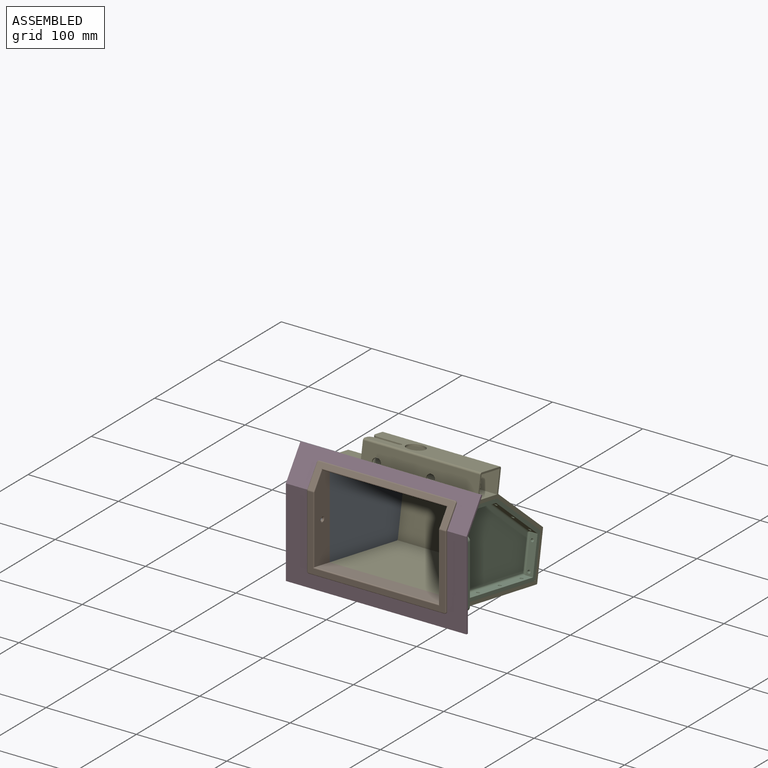
[diagram: assembled view]
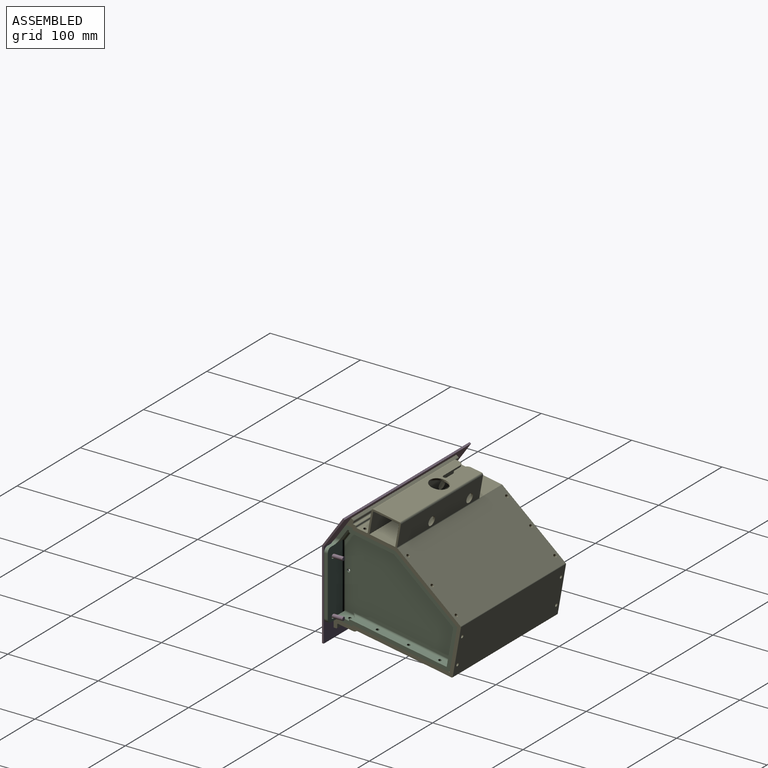
[diagram: assembled view, second angle]
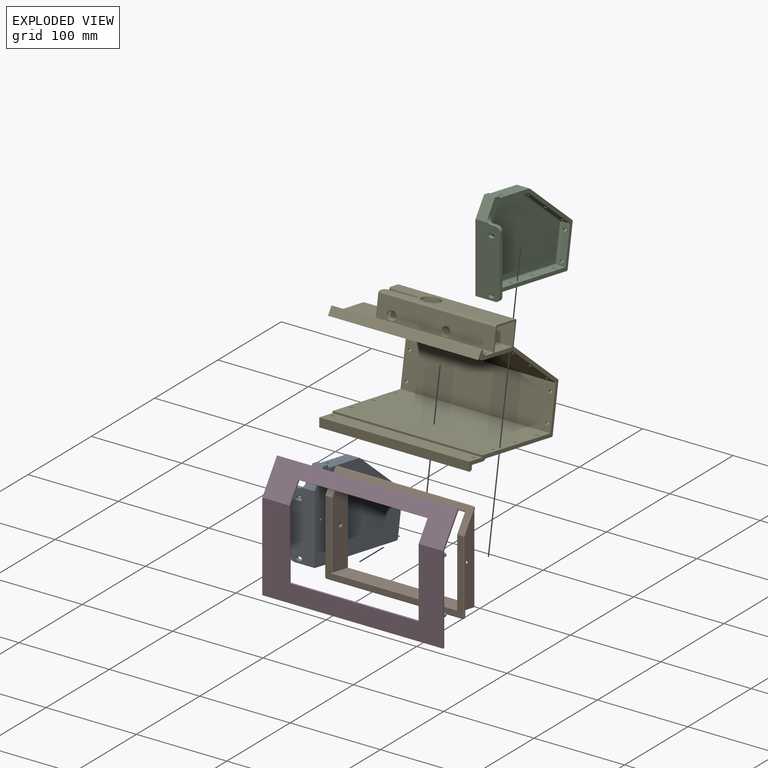
[diagram: exploded view]
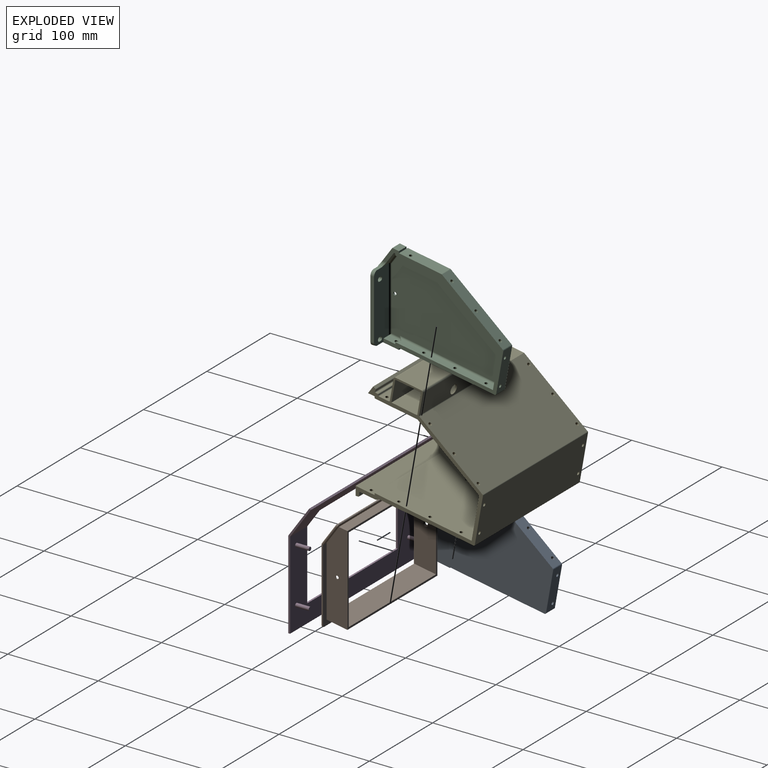
[diagram: exploded view, second angle]
ASSEMBLY  parts=5 mates=4
PART A: 62 faces, bbox 30.5x138.1x118.2 mm
  f0: plane 136.58x116.71mm, normal (-1,0,0), area 1328.3mm2, adj f1,f2,f3,f4,f8,f9,f10,f11
  f1: plane 105.9x18.67mm, normal (0,-0.17,-0.98), area 1476.5mm2, adj f0,f5,f6,f8,f36,f37,f38,f48
  f2: plane 44.95x14mm, normal (0,0.98,-0.17), area 619.7mm2, adj f0,f6,f42,f43,f48,f49
  f3: plane 67.33x57.19mm, normal (0,0.65,0.76), area 1207.9mm2, adj f0,f6,f44,f45,f46,f49,f50
  f4: plane 47.01x14mm, normal (0,0.17,0.98), area 658.7mm2, adj f0,f5,f6,f9,f40,f50
  f5: plane 94.71x2mm, normal (0,-1,0), area 189.4mm2, adj f1,f4,f6,f7
  f6: plane 115.58x113.4mm, normal (1,0,0), area 9184.9mm2, adj f1,f2,f3,f4,f5,f48,f49,f50
  f7: plane 100.05x21mm, normal (1,0,0), area 1913.3mm2, adj f5,f8,f9,f10,f11,f12,f13,f47
  f8: plane 12x2.03mm, normal (0,1,0), area 24.4mm2, adj f0,f1,f7,f13
  f9: plane 12x2.03mm, normal (0,1,0), area 24.4mm2, adj f0,f4,f7,f10
  f10: plane 12x7.27mm, normal (0,0.17,0.98), area 88.6mm2, adj f0,f7,f9,f11
  f11: plane 19.87x13.99mm, normal (0,-0.82,0.57), area 289.7mm2, adj f0,f7,f10,f12,f53
  f12: plane 76.74x27mm, normal (0,-1,0), area 1995.9mm2, adj f7,f11,f13,f25,f26,f27,f28,f29
  f13: plane 21x12mm, normal (0,-0.17,-0.98), area 246.3mm2, adj f0,f7,f8,f12,f39
  f14: plane 75.48x23mm, normal (0,1,0), area 1648.5mm2, adj f0,f15,f23,f25,f26,f27,f28,f29
  f15: plane 17.96x14.47mm, normal (0,0.82,-0.57), area 167.6mm2, adj f0,f14,f16,f53,f57
  f16: plane 10.17x1.73mm, normal (0,-0.17,-0.98), area 13.8mm2, adj f0,f15,f17,f57
  f17: plane 10.15x4.21mm, normal (0,-1,0), area 21.1mm2, adj f0,f16,f18,f24,f54,f57
  f18: plane 49.65x8.75mm, normal (0,-0.17,-0.98), area 393.7mm2, adj f0,f17,f19,f40,f54
  f19: plane 65.72x55.82mm, normal (0,-0.65,-0.76), area 661mm2, adj f0,f18,f20,f44,f45,f46,f55
  f20: plane 41.07x8mm, normal (0,-0.98,0.17), area 314.4mm2, adj f0,f19,f21,f42,f43,f56
  f21: plane 108.13x19.07mm, normal (0,0.17,0.98), area 839.1mm2, adj f0,f20,f22,f36,f37,f38,f41,f58
  f22: plane 2.06x1.72mm, normal (0,-1,0), area 3.2mm2, adj f0,f21,f23,f41
  f23: plane 14.73x8mm, normal (0,0.17,0.98), area 104.1mm2, adj f0,f14,f22,f39,f41,f61
  f24: plane 124.2x104.21mm, normal (-1,0,0), area 8664.9mm2, adj f17,f47,f54,f55,f56,f57,f58,f59
  f25: plane 5x4mm, normal (0,0,1), area 20mm2, adj f12,f14,f52,f53
  f26: plane 10x4mm, normal (0,0,-1), area 40mm2, adj f0,f12,f14,f51
  f27: plane 65.48x4mm, normal (-1,0,0), area 261.9mm2, adj f12,f14,f51,f52
  f28: cylinder r=2.25mm len=4.5mm, axis (0,1,0), area 28.3mm2, adj f12,f14,f29,f31
  f29: plane 4x2mm, normal (0,0,1), area 8mm2, adj f12,f14,f28,f30
  f30: cylinder r=2.25mm len=4.5mm, axis (0,1,0), area 28.3mm2, adj f12,f14,f29,f31
  f31: plane 4x2mm, normal (0,0,-1), area 8mm2, adj f12,f14,f28,f30
  f32: cylinder r=2.25mm len=4.5mm, axis (0,1,0), area 28.3mm2, adj f12,f14,f33,f35
  f33: plane 4x2mm, normal (0,0,1), area 8mm2, adj f12,f14,f32,f34
  f34: cylinder r=2.25mm len=4.5mm, axis (0,1,0), area 28.3mm2, adj f12,f14,f33,f35
  f35: plane 4x2mm, normal (0,0,-1), area 8mm2, adj f12,f14,f32,f34
  f36: cylinder r=1.75mm len=4.55mm, axis (0,-0.17,-0.98), area 44mm2, adj f1,f21
  f37: cylinder r=1.75mm len=4.55mm, axis (0,-0.17,-0.98), area 44mm2, adj f1,f21
  f38: cylinder r=1.75mm len=4.55mm, axis (0,-0.17,-0.98), area 44mm2, adj f1,f21
  f39: cylinder r=1.75mm len=4.55mm, axis (0,-0.17,-0.98), area 44mm2, adj f13,f23
  f40: cylinder r=1.75mm len=4.55mm, axis (0,-0.17,-0.98), area 44mm2, adj f4,f18
  f41: cylinder r=4mm len=7.06mm, axis (0,0.17,0.98), area 16.5mm2, adj f21,f22,f23,f58,f60,f61
  f42: cylinder r=1.75mm len=4.55mm, axis (0,0.98,-0.17), area 44mm2, adj f2,f20
  f43: cylinder r=1.75mm len=4.55mm, axis (0,0.98,-0.17), area 44mm2, adj f2,f20
  f44: cylinder r=1.75mm len=5.31mm, axis (0,0.65,0.76), area 44mm2, adj f3,f19
  f45: cylinder r=1.75mm len=5.31mm, axis (0,0.65,0.76), area 44mm2, adj f3,f19
  f46: cylinder r=1.75mm len=5.31mm, axis (0,0.65,0.76), area 44mm2, adj f3,f19
  f47: cylinder r=1.75mm len=3.5mm, axis (1,0,0), area 22mm2, adj f7,f24
  f48: cylinder r=1.5mm len=14mm, axis (-1,0,0), area 33mm2, adj f0,f1,f2,f6
  f49: cylinder r=1.5mm len=14mm, axis (-1,0,0), area 21.9mm2, adj f0,f2,f3,f6
  f50: cylinder r=1.5mm len=14mm, axis (-1,0,0), area 11.1mm2, adj f0,f3,f4,f6
  f51: cylinder r=5mm len=5mm, axis (0,-1,0), area 31.4mm2, adj f12,f14,f26,f27
  f52: cylinder r=5mm len=5mm, axis (0,1,0), area 31.4mm2, adj f12,f14,f25,f27
  f53: cylinder r=5mm len=7.5mm, axis (0,-1,0), area 39.6mm2, adj f0,f11,f12,f15,f25
  f54: cylinder r=2mm len=50mm, axis (0,0.98,-0.17), area 157mm2, adj f17,f18,f24,f55
  f55: cylinder r=2mm len=67.02mm, axis (0,0.76,-0.65), area 268.2mm2, adj f19,f24,f54,f56
  f56: cylinder r=2mm len=41.42mm, axis (0,-0.17,-0.98), area 126.1mm2, adj f20,f24,f55,f58
  f57: cylinder r=2mm len=18.15mm, axis (0,0.57,0.82), area 63.1mm2, adj f15,f16,f17,f24,f59
  f58: cylinder r=2mm len=110.69mm, axis (0,-0.98,0.17), area 344.5mm2, adj f21,f24,f41,f56,f60
  f59: cylinder r=2mm len=72.12mm, axis (0,0,1), area 222.9mm2, adj f14,f24,f57,f61
  f60: bspline ~4.37x1.97mm, area 5.5mm2, adj f24,f41,f58,f61
  f61: cylinder r=2mm len=13.75mm, axis (0,-0.98,0.17), area 37mm2, adj f23,f24,f41,f59,f60
PART B: 48 faces, bbox 154.3x25.2x107 mm
  f0: plane 154x82.63mm, normal (0,1,0), area 1787.4mm2, adj f1,f3,f6,f7,f12,f15,f16,f19
  f1: plane 154x22.99mm, normal (0,0.82,-0.57), area 965.2mm2, adj f0,f3,f6,f14,f15,f16,f17,f18
  f2: plane 152x81.63mm, normal (0,-1,0), area 1792.3mm2, adj f21,f22,f23,f24,f26,f28,f30,f38
  f3: plane 102.91x16.2mm, normal (1,0,0), area 107.4mm2, adj f0,f1,f17,f19,f30,f32,f34
  f4: plane 96.87x24mm, normal (-1,0,0), area 2129.7mm2, adj f10,f11,f13,f35,f36,f37,f38,f40
  f5: plane 96.87x24mm, normal (1,0,0), area 2129.7mm2, adj f10,f11,f13,f37,f39,f40,f41,f42
  f6: plane 102.91x16.2mm, normal (-1,0,0), area 107.4mm2, adj f0,f1,f18,f20,f23,f25,f27
  f7: plane 150x1mm, normal (0,0,-1), area 150mm2, adj f0,f19,f20,f26
  f8: plane 152x22.53mm, normal (0,-0.82,0.57), area 1089.8mm2, adj f21,f22,f27,f29,f31,f33,f34,f35
  f9: plane 150x0.57mm, normal (0,0.57,0.82), area 104.8mm2, adj f17,f18,f31,f47
  f10: plane 138x23.83mm, normal (0,0.17,0.98), area 3338.8mm2, adj f4,f5,f13,f40
  f11: plane 138x11.33mm, normal (0,-0.17,-0.98), area 1588.2mm2, adj f4,f5,f13,f37
  f12: plane 142x23mm, normal (0,-0.17,-0.98), area 3316.4mm2, adj f0,f13,f15,f16
  f13: plane 142x98.77mm, normal (0,1,0), area 955.6mm2, adj f4,f5,f10,f11,f12,f14,f15,f16
  f14: plane 142x9.44mm, normal (0,0.17,0.98), area 1361.3mm2, adj f1,f13,f15,f16
  f15: plane 100.43x23mm, normal (-1,0,0), area 2114.6mm2, adj f0,f1,f12,f13,f14,f44
  f16: plane 100.43x23mm, normal (1,0,0), area 2114.6mm2, adj f0,f1,f12,f13,f14,f43
  f17: cylinder r=2mm len=2.21mm, axis (0,0.82,-0.57), area 2.9mm2, adj f1,f3,f9,f33,f47
  f18: cylinder r=2mm len=2.21mm, axis (0,-0.82,0.57), area 2.9mm2, adj f1,f6,f9,f29,f47
  f19: cylinder r=2mm len=2mm, axis (0,1,0), area 3.1mm2, adj f0,f3,f7,f28
  f20: cylinder r=2mm len=2mm, axis (0,1,0), area 3.1mm2, adj f0,f6,f7,f24
  f21: cylinder r=2mm len=6mm, axis (1,0,0), area 7.3mm2, adj f2,f8,f25,f41
  f22: cylinder r=2mm len=6mm, axis (1,0,0), area 7.3mm2, adj f2,f8,f32,f36
  f23: cylinder r=1mm len=80.63mm, axis (0,0,1), area 126.7mm2, adj f2,f6,f24,f25
  f24: torus R=1mm, axis (0,-1,0), area 4mm2, adj f2,f20,f23,f26
  f25: torus R=1mm, axis (1,0,0), area 1.6mm2, adj f6,f21,f23,f27
  f26: cylinder r=1mm len=150mm, axis (-1,0,0), area 235.6mm2, adj f2,f7,f24,f28
  f27: cylinder r=1mm len=22.28mm, axis (0,-0.57,-0.82), area 41.6mm2, adj f6,f8,f25,f29
  f28: torus R=1mm, axis (0,-1,0), area 4mm2, adj f2,f19,f26,f30
  f29: torus R=1mm, axis (0,0.82,-0.57), area 4mm2, adj f8,f18,f27,f31
  f30: cylinder r=1mm len=80.63mm, axis (0,0,-1), area 126.7mm2, adj f2,f3,f28,f32
  f31: cylinder r=1mm len=150mm, axis (-1,0,0), area 235.6mm2, adj f8,f9,f29,f33
  f32: torus R=1mm, axis (-1,0,0), area 1.6mm2, adj f3,f22,f30,f34
  f33: torus R=1mm, axis (0,0.82,-0.57), area 4mm2, adj f8,f17,f31,f34
  f34: cylinder r=1mm len=22.28mm, axis (0,0.57,0.82), area 41.6mm2, adj f3,f8,f32,f33
  f35: cylinder r=1mm len=18.65mm, axis (0,0.57,0.82), area 33.7mm2, adj f4,f8,f36,f37
  f36: torus R=1mm, axis (1,0,0), area 1.6mm2, adj f4,f22,f35,f38
  f37: cylinder r=1mm len=140mm, axis (1,0,0), area 278.1mm2, adj f4,f5,f8,f11,f35,f39
  f38: cylinder r=1mm len=75.82mm, axis (0,0,1), area 118.1mm2, adj f2,f4,f36,f40
  f39: cylinder r=1mm len=18.65mm, axis (0,0.57,0.82), area 33.7mm2, adj f5,f8,f37,f41
  f40: cylinder r=1mm len=140mm, axis (1,0,0), area 242mm2, adj f2,f4,f5,f10,f38,f42
  f41: torus R=1mm, axis (-1,0,0), area 1.6mm2, adj f5,f21,f39,f42
  f42: cylinder r=1mm len=75.82mm, axis (0,0,-1), area 118.1mm2, adj f2,f5,f40,f41
  f43: cylinder r=1.75mm len=3.5mm, axis (-1,0,0), area 11mm2, adj f16,f46
  f44: cylinder r=1.75mm len=3.5mm, axis (-1,0,0), area 11mm2, adj f15,f45
  f45: cone r=2.75mm half-angle=45deg, axis (1,0,0), area 20mm2, adj f5,f44
  f46: cone r=2.75mm half-angle=45deg, axis (-1,0,0), area 20mm2, adj f4,f43
  f47: plane 152.48x0.53mm, normal (0,1,0), area 79.7mm2, adj f1,f9,f17,f18
PART C: 63 faces, bbox 30.5x138.1x118.2 mm
  f0: plane 136.58x116.71mm, normal (1,0,0), area 1328.3mm2, adj f1,f2,f3,f4,f8,f9,f10,f11
  f1: plane 105.9x18.67mm, normal (0,-0.17,-0.98), area 1476.5mm2, adj f0,f5,f6,f8,f36,f37,f38,f48
  f2: plane 44.95x14mm, normal (0,0.98,-0.17), area 619.7mm2, adj f0,f6,f42,f43,f48,f49
  f3: plane 67.33x57.19mm, normal (0,0.65,0.76), area 1207.9mm2, adj f0,f6,f44,f45,f46,f49,f50
  f4: plane 47.01x14mm, normal (0,0.17,0.98), area 658.7mm2, adj f0,f5,f6,f9,f40,f50
  f5: plane 94.71x2mm, normal (0,-1,0), area 189.4mm2, adj f1,f4,f6,f7
  f6: plane 115.58x113.4mm, normal (-1,0,0), area 9184.9mm2, adj f1,f2,f3,f4,f5,f48,f49,f50
  f7: plane 100.05x21mm, normal (-1,0,0), area 1913.3mm2, adj f5,f8,f9,f10,f11,f12,f13,f47
  f8: plane 12x2.03mm, normal (0,1,0), area 24.4mm2, adj f0,f1,f7,f13
  f9: plane 12x2.03mm, normal (0,1,0), area 24.4mm2, adj f0,f4,f7,f10
  f10: plane 12x7.27mm, normal (0,0.17,0.98), area 88.6mm2, adj f0,f7,f9,f11
  f11: plane 19.87x13.99mm, normal (0,-0.82,0.57), area 289.7mm2, adj f0,f7,f10,f12,f53
  f12: plane 76.74x27mm, normal (0,-1,0), area 1995.9mm2, adj f7,f11,f13,f25,f26,f27,f28,f29
  f13: plane 21x12mm, normal (0,-0.17,-0.98), area 246.3mm2, adj f0,f7,f8,f12,f39
  f14: plane 75.48x23mm, normal (0,1,0), area 1648.5mm2, adj f0,f15,f23,f25,f26,f27,f28,f29
  f15: plane 17.96x14.47mm, normal (0,0.82,-0.57), area 167.6mm2, adj f0,f14,f16,f53,f56
  f16: plane 9.58x1.51mm, normal (0,-0.17,-0.98), area 13.4mm2, adj f0,f15,f17,f54,f56
  f17: plane 8x2.03mm, normal (0,-1,0), area 16.2mm2, adj f0,f16,f18,f54
  f18: plane 49.65x8.75mm, normal (0,-0.17,-0.98), area 393.7mm2, adj f0,f17,f19,f40,f55
  f19: plane 65.72x55.82mm, normal (0,-0.65,-0.76), area 661mm2, adj f0,f18,f20,f44,f45,f46,f57
  f20: plane 41.07x8mm, normal (0,-0.98,0.17), area 314.4mm2, adj f0,f19,f21,f42,f43,f59
  f21: plane 108.13x19.07mm, normal (0,0.17,0.98), area 839.1mm2, adj f0,f20,f22,f36,f37,f38,f41,f61
  f22: plane 2.06x1.72mm, normal (0,-1,0), area 3.2mm2, adj f0,f21,f23,f41
  f23: plane 14.73x8mm, normal (0,0.17,0.98), area 104.1mm2, adj f0,f14,f22,f39,f41,f60
  f24: plane 124.2x101.62mm, normal (1,0,0), area 8662.2mm2, adj f47,f55,f56,f57,f58,f59,f60,f61
  f25: plane 5x4mm, normal (0,0,1), area 20mm2, adj f12,f14,f52,f53
  f26: plane 10x4mm, normal (0,0,-1), area 40mm2, adj f0,f12,f14,f51
  f27: plane 65.48x4mm, normal (1,0,0), area 261.9mm2, adj f12,f14,f51,f52
  f28: cylinder r=2.25mm len=4.5mm, axis (0,1,0), area 28.3mm2, adj f12,f14,f29,f31
  f29: plane 4x2mm, normal (0,0,1), area 8mm2, adj f12,f14,f28,f30
  f30: cylinder r=2.25mm len=4.5mm, axis (0,1,0), area 28.3mm2, adj f12,f14,f29,f31
  f31: plane 4x2mm, normal (0,0,-1), area 8mm2, adj f12,f14,f28,f30
  f32: cylinder r=2.25mm len=4.5mm, axis (0,1,0), area 28.3mm2, adj f12,f14,f33,f35
  f33: plane 4x2mm, normal (0,0,1), area 8mm2, adj f12,f14,f32,f34
  f34: cylinder r=2.25mm len=4.5mm, axis (0,1,0), area 28.3mm2, adj f12,f14,f33,f35
  f35: plane 4x2mm, normal (0,0,-1), area 8mm2, adj f12,f14,f32,f34
  f36: cylinder r=1.75mm len=4.55mm, axis (0,-0.17,-0.98), area 44mm2, adj f1,f21
  f37: cylinder r=1.75mm len=4.55mm, axis (0,-0.17,-0.98), area 44mm2, adj f1,f21
  f38: cylinder r=1.75mm len=4.55mm, axis (0,-0.17,-0.98), area 44mm2, adj f1,f21
  f39: cylinder r=1.75mm len=4.55mm, axis (0,-0.17,-0.98), area 44mm2, adj f13,f23
  f40: cylinder r=1.75mm len=4.55mm, axis (0,-0.17,-0.98), area 44mm2, adj f4,f18
  f41: cylinder r=4mm len=7.06mm, axis (0,0.17,0.98), area 16.5mm2, adj f21,f22,f23,f60,f61,f62
  f42: cylinder r=1.75mm len=4.55mm, axis (0,0.98,-0.17), area 44mm2, adj f2,f20
  f43: cylinder r=1.75mm len=4.55mm, axis (0,0.98,-0.17), area 44mm2, adj f2,f20
  f44: cylinder r=1.75mm len=5.31mm, axis (0,0.65,0.76), area 44mm2, adj f3,f19
  f45: cylinder r=1.75mm len=5.31mm, axis (0,0.65,0.76), area 44mm2, adj f3,f19
  f46: cylinder r=1.75mm len=5.31mm, axis (0,0.65,0.76), area 44mm2, adj f3,f19
  f47: cylinder r=1.75mm len=3.5mm, axis (-1,0,0), area 22mm2, adj f7,f24
  f48: cylinder r=1.5mm len=14mm, axis (1,0,0), area 33mm2, adj f0,f1,f2,f6
  f49: cylinder r=1.5mm len=14mm, axis (1,0,0), area 21.9mm2, adj f0,f2,f3,f6
  f50: cylinder r=1.5mm len=14mm, axis (1,0,0), area 11.1mm2, adj f0,f3,f4,f6
  f51: cylinder r=5mm len=5mm, axis (0,-1,0), area 31.4mm2, adj f12,f14,f26,f27
  f52: cylinder r=5mm len=5mm, axis (0,1,0), area 31.4mm2, adj f12,f14,f25,f27
  f53: cylinder r=5mm len=7.5mm, axis (0,-1,0), area 39.6mm2, adj f0,f11,f12,f15,f25
  f54: cylinder r=2mm len=3.72mm, axis (0,0,-1), area 6.3mm2, adj f16,f17,f55,f56
  f55: cylinder r=2mm len=51.54mm, axis (0,0.98,-0.17), area 159.7mm2, adj f18,f24,f54,f56,f57
  f56: cylinder r=2mm len=17.9mm, axis (0,0.57,0.82), area 60.4mm2, adj f15,f16,f24,f54,f55,f58
  f57: cylinder r=2mm len=67.02mm, axis (0,0.76,-0.65), area 268.2mm2, adj f19,f24,f55,f59
  f58: cylinder r=2mm len=72.12mm, axis (0,0,1), area 222.9mm2, adj f14,f24,f56,f60
  f59: cylinder r=2mm len=41.42mm, axis (0,-0.17,-0.98), area 126.1mm2, adj f20,f24,f57,f61
  f60: cylinder r=2mm len=13.75mm, axis (0,-0.98,0.17), area 37mm2, adj f23,f24,f41,f58,f62
  f61: cylinder r=2mm len=110.69mm, axis (0,-0.98,0.17), area 344.5mm2, adj f21,f24,f41,f59,f62
  f62: bspline ~4.37x1.97mm, area 5.5mm2, adj f24,f41,f60,f61
PART D: 20 faces, bbox 200x24.9x130.9 mm
  f0: plane 200x33.28mm, normal (0,-0.82,0.57), area 4551.1mm2, adj f2,f4,f6,f7,f9,f10,f11
  f1: plane 200x32.77mm, normal (0,0.82,-0.57), area 4515.2mm2, adj f3,f4,f6,f7,f9,f10,f11
  f2: plane 200x97.63mm, normal (0,-1,0), area 8424.9mm2, adj f0,f4,f5,f6,f8,f9,f10
  f3: plane 200x97mm, normal (0,1,0), area 8338.7mm2, adj f1,f4,f5,f6,f8,f9,f10,f12
  f4: plane 130.91x24.94mm, normal (-1,0,0), area 275.3mm2, adj f0,f1,f2,f3,f5,f7
  f5: plane 200x2mm, normal (0,0,-1), area 400mm2, adj f2,f3,f4,f6
  f6: plane 130.91x24.94mm, normal (1,0,0), area 275.3mm2, adj f0,f1,f2,f3,f5,f7
  f7: plane 200x1.64mm, normal (0,0.57,0.82), area 400mm2, adj f0,f1,f4,f6
  f8: plane 143x2mm, normal (0,0,1), area 286mm2, adj f2,f3,f9,f10
  f9: plane 98.11x15.98mm, normal (1,0,0), area 204mm2, adj f0,f1,f2,f3,f8,f11
  f10: plane 98.11x15.98mm, normal (-1,0,0), area 204mm2, adj f0,f1,f2,f3,f8,f11
  f11: plane 143x1.64mm, normal (0,-0.57,-0.82), area 286mm2, adj f0,f1,f9,f10
  f12: cylinder r=2mm len=15mm, axis (0,-1,0), area 188.5mm2, adj f3,f13
  f13: plane 4x4mm, normal (0,1,0), area 12.6mm2, adj f12
  f14: cylinder r=2mm len=15mm, axis (0,-1,0), area 188.5mm2, adj f3,f15
  f15: plane 4x4mm, normal (0,1,0), area 12.6mm2, adj f14
  f16: cylinder r=2mm len=15mm, axis (0,-1,0), area 188.5mm2, adj f3,f17
  f17: plane 4x4mm, normal (0,1,0), area 12.6mm2, adj f16
  f18: cylinder r=2mm len=15mm, axis (0,-1,0), area 188.5mm2, adj f3,f19
  f19: plane 4x4mm, normal (0,1,0), area 12.6mm2, adj f18
PART E: 77 faces, bbox 166x141x145 mm
  f0: plane 166x47.27mm, normal (0,-0.98,0.17), area 7929.5mm2, adj f1,f19,f23,f24,f60,f61,f62,f63
  f1: plane 166x68.3mm, normal (0,-0.65,-0.76), area 14817.1mm2, adj f0,f20,f23,f24,f54,f55,f56,f57
  f2: plane 26.13x11mm, normal (-1,0,0), area 59.4mm2, adj f3,f4,f25,f28,f29,f37,f39,f65
  f3: plane 130x28.56mm, normal (0,0.17,0.98), area 3310.8mm2, adj f2,f24,f30,f31,f33,f34,f35,f36
  f4: plane 166x44.35mm, normal (0,0.17,0.98), area 6491.9mm2, adj f2,f10,f23,f24,f26,f29,f30,f32
  f5: plane 166x8.19mm, normal (0,-0.82,0.57), area 1660mm2, adj f6,f22,f23,f24
  f6: plane 166x2.46mm, normal (0,0.57,0.82), area 498mm2, adj f5,f23,f24,f66
  f7: plane 166x0.94mm, normal (0,0.82,-0.57), area 191.2mm2, adj f23,f24,f66,f67
  f8: plane 166x2.02mm, normal (0,0.17,0.98), area 340.1mm2, adj f23,f24,f67,f68
  f9: plane 166x0.35mm, normal (0,1,0), area 58.5mm2, adj f23,f24,f68,f69
  f10: plane 166x70.43mm, normal (0,0.65,0.76), area 15208.2mm2, adj f4,f23,f24,f30,f54,f55,f56,f57
  f11: plane 166x51.92mm, normal (0,0.98,-0.17), area 8713mm2, adj f23,f24,f60,f61,f62,f63,f71,f72
  f12: plane 166x104.46mm, normal (0,-0.17,-0.98), area 17549.9mm2, adj f23,f24,f48,f49,f50,f51,f52,f53
  f13: plane 166x16.25mm, normal (0,-0.17,-0.98), area 2719.6mm2, adj f23,f24,f46,f47,f74,f76
  f14: plane 166x3.04mm, normal (0,1,0), area 504.8mm2, adj f23,f24,f74,f75
  f15: plane 166x3mm, normal (0,0,-1), area 498mm2, adj f16,f23,f24,f75
  f16: plane 166x10mm, normal (0,-1,0), area 1660mm2, adj f15,f17,f23,f24
  f17: plane 166x21mm, normal (0,0.17,0.98), area 3520.5mm2, adj f16,f18,f23,f24,f46,f47
  f18: plane 166x2.03mm, normal (0,-1,0), area 337.1mm2, adj f17,f19,f23,f24
  f19: plane 166x107.37mm, normal (0,0.17,0.98), area 18041mm2, adj f0,f18,f23,f24,f48,f49,f50,f51
  f20: plane 166x47.41mm, normal (0,-0.17,-0.98), area 7520mm2, adj f1,f21,f23,f24,f44,f45,f64
  f21: plane 166x2.03mm, normal (0,-1,0), area 337.1mm2, adj f20,f22,f23,f24
  f22: plane 166x7.27mm, normal (0,-0.17,-0.98), area 1225.1mm2, adj f5,f21,f23,f24
  f23: plane 140.96x129.62mm, normal (-1,0,0), area 1374.4mm2, adj f0,f1,f4,f5,f6,f7,f8,f9
  f24: plane 145.02x140.96mm, normal (1,0,0), area 1537mm2, adj f0,f1,f3,f4,f5,f6,f7,f8
  f25: plane 130x28.56mm, normal (0,-0.17,-0.98), area 3310.8mm2, adj f2,f24,f26,f29,f30,f31,f33,f34
  f26: plane 130x24.13mm, normal (0,-0.98,0.17), area 3027.9mm2, adj f4,f24,f25,f30,f42,f43
  f27: plane 130x23.56mm, normal (0,0.98,-0.17), area 2953.4mm2, adj f24,f30,f38,f42,f43,f70
  f28: plane 130x23.14mm, normal (0,-0.98,0.17), area 2897.9mm2, adj f2,f24,f39,f40,f41,f65
  f29: plane 130x24.13mm, normal (0,0.98,-0.17), area 3027.9mm2, adj f2,f4,f24,f25,f40,f41
  f30: plane 28.81x13.33mm, normal (-1,0,0), area 75.2mm2, adj f3,f4,f10,f25,f26,f27,f36,f38
  f31: cylinder r=10mm len=20.04mm, axis (0,0.17,0.98), area 125.7mm2, adj f3,f25
  f32: cylinder r=10mm len=20.04mm, axis (0,0.17,0.98), area 125.7mm2, adj f4,f64
  f33: plane 27x1.97mm, normal (0,-0.98,0.17), area 54mm2, adj f3,f25,f35,f36
  f34: plane 27x1.97mm, normal (0,0.98,-0.17), area 54mm2, adj f3,f25,f35,f37
  f35: cylinder r=2mm len=4.29mm, axis (0,0.17,0.98), area 12.6mm2, adj f3,f25,f33,f34
  f36: cylinder r=5mm len=5.27mm, axis (0,-0.17,-0.98), area 15.7mm2, adj f3,f25,f30,f33
  f37: cylinder r=5mm len=5.27mm, axis (0,0.17,0.98), area 15.7mm2, adj f2,f3,f25,f34
  f38: cylinder r=2mm len=130mm, axis (1,0,0), area 408.4mm2, adj f3,f24,f27,f30
  f39: cylinder r=2mm len=130mm, axis (1,0,0), area 408.4mm2, adj f2,f3,f24,f28
  f40: cylinder r=5mm len=10.2mm, axis (0,0.98,-0.17), area 62.8mm2, adj f28,f29
  f41: cylinder r=5mm len=10.2mm, axis (0,0.98,-0.17), area 62.8mm2, adj f28,f29
  f42: cylinder r=5mm len=10.2mm, axis (0,0.98,-0.17), area 62.8mm2, adj f26,f27
  f43: cylinder r=5mm len=10.2mm, axis (0,0.98,-0.17), area 62.8mm2, adj f26,f27
  f44: cylinder r=1.75mm len=4.55mm, axis (0,0.17,0.98), area 44mm2, adj f4,f20
  f45: cylinder r=1.75mm len=4.55mm, axis (0,0.17,0.98), area 44mm2, adj f4,f20
  f46: cylinder r=1.75mm len=4.55mm, axis (0,0.17,0.98), area 44mm2, adj f13,f17
  f47: cylinder r=1.75mm len=4.55mm, axis (0,0.17,0.98), area 44mm2, adj f13,f17
  f48: cylinder r=1.75mm len=4.55mm, axis (0,-0.17,-0.98), area 44mm2, adj f12,f19
  f49: cylinder r=1.75mm len=4.55mm, axis (0,-0.17,-0.98), area 44mm2, adj f12,f19
  f50: cylinder r=1.75mm len=4.55mm, axis (0,-0.17,-0.98), area 44mm2, adj f12,f19
  f51: cylinder r=1.75mm len=4.55mm, axis (0,-0.17,-0.98), area 44mm2, adj f12,f19
  f52: cylinder r=1.75mm len=4.55mm, axis (0,-0.17,-0.98), area 44mm2, adj f12,f19
  f53: cylinder r=1.75mm len=4.55mm, axis (0,-0.17,-0.98), area 44mm2, adj f12,f19
  f54: cylinder r=1.75mm len=5.31mm, axis (0,0.65,0.76), area 44mm2, adj f1,f10
  f55: cylinder r=1.75mm len=5.31mm, axis (0,0.65,0.76), area 44mm2, adj f1,f10
  f56: cylinder r=1.75mm len=5.31mm, axis (0,0.65,0.76), area 44mm2, adj f1,f10
  f57: cylinder r=1.75mm len=5.31mm, axis (0,0.65,0.76), area 44mm2, adj f1,f10
  f58: cylinder r=1.75mm len=5.31mm, axis (0,0.65,0.76), area 44mm2, adj f1,f10
  f59: cylinder r=1.75mm len=5.31mm, axis (0,0.65,0.76), area 44mm2, adj f1,f10
  f60: cylinder r=1.75mm len=4.55mm, axis (0,0.98,-0.17), area 44mm2, adj f0,f11
  f61: cylinder r=1.75mm len=4.55mm, axis (0,0.98,-0.17), area 44mm2, adj f0,f11
  f62: cylinder r=1.75mm len=4.55mm, axis (0,0.98,-0.17), area 44mm2, adj f0,f11
  f63: cylinder r=1.75mm len=4.55mm, axis (0,0.98,-0.17), area 44mm2, adj f0,f11
  f64: cone r=12mm half-angle=45deg, axis (0,-0.17,-0.98), area 195.5mm2, adj f20,f32
  f65: cylinder r=1mm len=130mm, axis (1,0,0), area 204.2mm2, adj f2,f4,f24,f28
  f66: cylinder r=1mm len=166mm, axis (-1,0,0), area 260.8mm2, adj f6,f7,f23,f24
  f67: cylinder r=1mm len=166mm, axis (-1,0,0), area 333.2mm2, adj f7,f8,f23,f24
  f68: cylinder r=1mm len=166mm, axis (-1,0,0), area 231.8mm2, adj f8,f9,f23,f24
  f69: cylinder r=1mm len=166mm, axis (-1,0,0), area 231.8mm2, adj f4,f9,f23,f24
  f70: cylinder r=1mm len=130mm, axis (-1,0,0), area 135.4mm2, adj f10,f24,f27,f30
  f71: cylinder r=1mm len=166mm, axis (1,0,0), area 172.8mm2, adj f10,f11,f23,f24
  f72: cylinder r=1mm len=166mm, axis (-1,0,0), area 260.8mm2, adj f11,f12,f23,f24
  f73: cylinder r=1mm len=166mm, axis (1,0,0), area 139.6mm2, adj f12,f23,f24,f76
  f74: cylinder r=1mm len=166mm, axis (1,0,0), area 289.7mm2, adj f13,f14,f23,f24
  f75: cylinder r=1mm len=166mm, axis (-1,0,0), area 260.8mm2, adj f14,f15,f23,f24
  f76: cylinder r=5mm len=166mm, axis (1,0,0), area 698.1mm2, adj f13,f23,f24,f73
PLACE A t=(-174.49,-66.95,22.3)mm
PLACE B t=(-36.49,-66.95,22.3)mm
PLACE C t=(-36.49,-66.95,22.3)mm
PLACE D t=(-36.49,-66.95,22.3)mm
PLACE E t=(-36.49,-66.95,22.3)mm
MATE fastened C.f39 <-> E.f45  axis (0,0.17,0.98) through (113.01,-36.3,113.9)mm
MATE fastened B.f43 <-> A.f47  axis (-1,0,0) through (-35.99,-57.45,68.25)mm
MATE fastened A.f30 <-> D.f3  axis (0,-1,0) through (-52.49,-66.95,87.3)mm
MATE fastened A.f39 <-> E.f44  axis (0,0.17,0.98) through (-42.99,-36.3,113.9)mm
